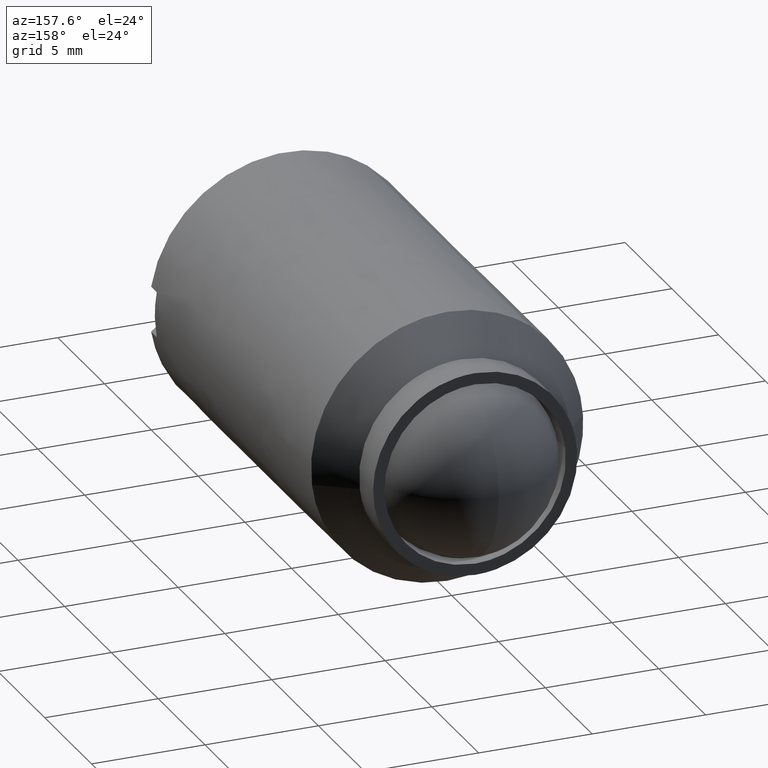
[diagram: clean part render]
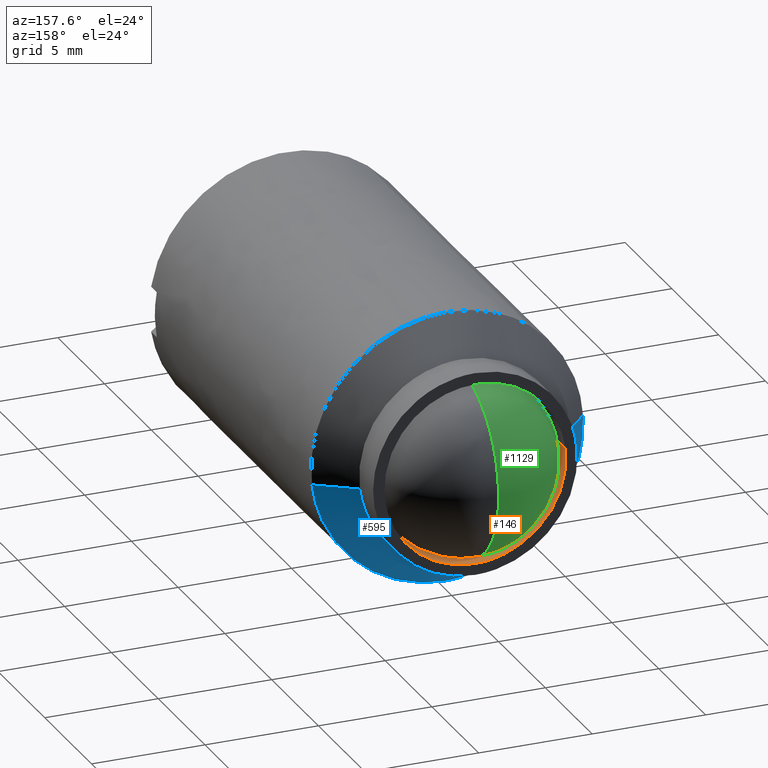
[diagram: same view with three faces highlighted in distinct colors, each labeled with its STEP entity id]
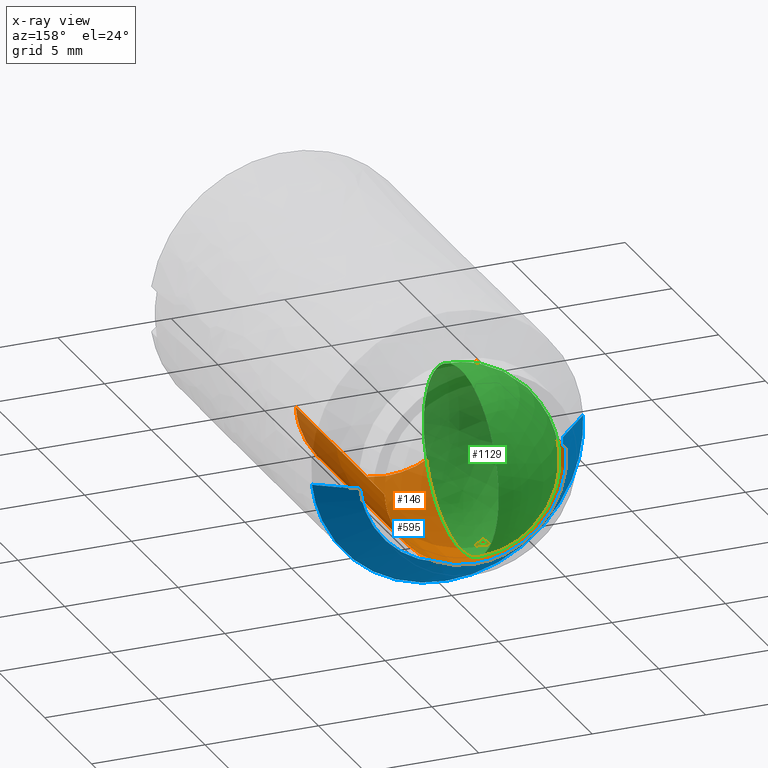
[diagram: x-ray of the same camera — body ghosted, the three highlighted faces saturated]
A machine part, auxiliary view with three faces highlighted in distinct colors.
The next image is the same camera in x-ray (body ghosted, the three faces saturated) — at least one of them is partly hidden behind the body in this view.
Their STEP definitions:

[orange] entity #146 — the highlighted face is a freeform B-spline surface patch.
#44=CARTESIAN_POINT('',(-3.972038105454666,-2.262499999999943,0.472136938627034));
#45=CARTESIAN_POINT('',(-3.985550461794422,-2.262499999999943,0.358458914551911));
#46=CARTESIAN_POINT('',(-3.992539193687467,-2.262499999999943,0.244194158139428));
#47=CARTESIAN_POINT('',(-4.236733351826894,-2.262499999999944,-3.748345035548039));
#48=CARTESIAN_POINT('',(-0.244194158139428,-2.262499999999943,-3.992539193687467));
#49=CARTESIAN_POINT('',(3.748345035548039,-2.262499999999944,-4.236733351826894));
#50=CARTESIAN_POINT('',(3.992539193687467,-2.262499999999943,-0.244194158139428));
#51=CARTESIAN_POINT('',(-3.972038105454666,-12.243437500000006,0.472136938627034));
#52=CARTESIAN_POINT('',(-3.985550461794422,-12.243437500000004,0.358458914551911));
#53=CARTESIAN_POINT('',(-3.992539193687467,-12.243437500000001,0.244194158139428));
#54=CARTESIAN_POINT('',(-4.236733351826894,-12.243437500000004,-3.748345035548039));
#55=CARTESIAN_POINT('',(-0.244194158139428,-12.243437500000001,-3.992539193687467));
#56=CARTESIAN_POINT('',(3.748345035548039,-12.243437500000004,-4.236733351826894));
#57=CARTESIAN_POINT('',(3.992539193687467,-12.243437500000001,-0.244194158139428));
#65=(BOUNDED_SURFACE()B_SPLINE_SURFACE(2,1,((#44,#51),(#45,#52),(#46,#53),(#47,#54),(#48,#55),(#49,#56),(#50,#57)),.UNSPECIFIED.,.F.,.F.,.U.)B_SPLINE_SURFACE_WITH_KNOTS((3,2,2,3),(2,2),(0.0,0.265096679918781,6.892513677888299,13.519930675857820),(0.0,9.980937500000062),.UNSPECIFIED.)GEOMETRIC_REPRESENTATION_ITEM()RATIONAL_B_SPLINE_SURFACE(((0.977505800795127,0.977505800795127),(0.988284271247462,0.988284271247462),(1.0,1.0),(0.707106781186548,0.707106781186548),(1.0,1.0),(0.707106781186548,0.707106781186548),(1.0,1.0)))REPRESENTATION_ITEM('')SURFACE());
#66=CARTESIAN_POINT('',(-3.972038896442782,-11.999999999999989,0.472130284032587));
#67=VERTEX_POINT('',#66);
#68=CARTESIAN_POINT('',(0.0,-12.0,-4.0));
#69=VERTEX_POINT('',#68);
#70=CARTESIAN_POINT('',(-3.972038896442782,-11.999999999999984,0.472130284032587));
#71=CARTESIAN_POINT('',(-4.0,-12.000000000000004,0.236893116135492));
#72=CARTESIAN_POINT('',(-4.0,-12.0,0.0));
#73=CARTESIAN_POINT('',(-4.000000000000000,-12.0,-4.000000000000000));
#74=CARTESIAN_POINT('',(0.0,-12.0,-4.0));
#82=(BOUNDED_CURVE()B_SPLINE_CURVE(2,(#70,#71,#72,#73,#74),.UNSPECIFIED.,.F.,.U.)B_SPLINE_CURVE_WITH_KNOTS((3,2,3),(0.229562756656985,0.250000000000000,0.500000000000000),.UNSPECIFIED.)CURVE()GEOMETRIC_REPRESENTATION_ITEM()RATIONAL_B_SPLINE_CURVE((0.956027309157251,0.976056280054362,1.0,0.707106781186548,1.0))REPRESENTATION_ITEM(''));
#83=EDGE_CURVE('',#67,#69,#82,.T.);
#84=ORIENTED_EDGE('',*,*,#83,.T.);
#85=CARTESIAN_POINT('',(3.992539231132344,-12.0,-0.244193545919572));
#86=VERTEX_POINT('',#85);
#87=CARTESIAN_POINT('',(0.0,-12.0,-4.0));
#88=CARTESIAN_POINT('',(3.762825423769689,-12.0,-4.000000000000001));
#89=CARTESIAN_POINT('',(3.992539231132344,-12.000000000000004,-0.244193545919572));
#97=(BOUNDED_CURVE()B_SPLINE_CURVE(2,(#87,#88,#89),.UNSPECIFIED.,.F.,.U.)B_SPLINE_CURVE_WITH_KNOTS((3,3),(0.500000000000000,0.739333015158958),.UNSPECIFIED.)CURVE()GEOMETRIC_REPRESENTATION_ITEM()RATIONAL_B_SPLINE_CURVE((1.0,0.719603931287056,0.976072155084410))REPRESENTATION_ITEM(''));
#98=EDGE_CURVE('',#69,#86,#97,.T.);
#99=ORIENTED_EDGE('',*,*,#98,.T.);
#100=CARTESIAN_POINT('',(3.992539230669607,-2.499999999999945,-0.244193553485292));
#101=VERTEX_POINT('',#100);
#102=CARTESIAN_POINT('',(3.992539230669607,-2.499999999999945,-0.244193553485292));
#103=CARTESIAN_POINT('',(3.992539231132344,-12.0,-0.244193545919572));
#104=QUASI_UNIFORM_CURVE('',1,(#102,#103),.UNSPECIFIED.,.F.,.U.);
#105=EDGE_CURVE('',#101,#86,#104,.T.);
#106=ORIENTED_EDGE('',*,*,#105,.F.);
#107=CARTESIAN_POINT('',(0.0,-2.499999999999945,-4.0));
#108=VERTEX_POINT('',#107);
#109=CARTESIAN_POINT('',(0.0,-2.499999999999945,-4.0));
#110=CARTESIAN_POINT('',(3.762825409482173,-2.499999999999945,-4.000000000000000));
#111=CARTESIAN_POINT('',(3.992539230669606,-2.499999999999945,-0.244193553485292));
#119=(BOUNDED_CURVE()B_SPLINE_CURVE(2,(#109,#110,#111),.UNSPECIFIED.,.F.,.U.)B_SPLINE_CURVE_WITH_KNOTS((3,3),(0.500000000000000,0.739333014505017),.UNSPECIFIED.)CURVE()GEOMETRIC_REPRESENTATION_ITEM()RATIONAL_B_SPLINE_CURVE((1.0,0.719603932053196,0.976072153682888))REPRESENTATION_ITEM(''));
#120=EDGE_CURVE('',#108,#101,#119,.T.);
#121=ORIENTED_EDGE('',*,*,#120,.F.);
#122=CARTESIAN_POINT('',(-3.972038886687353,-2.499999999999945,0.472130366106310));
#123=VERTEX_POINT('',#122);
#124=CARTESIAN_POINT('',(-3.972038886687353,-2.499999999999945,0.472130366106311));
#125=CARTESIAN_POINT('',(-4.0,-2.499999999999945,0.236893157606169));
#126=CARTESIAN_POINT('',(-4.0,-2.499999999999945,0.0));
#127=CARTESIAN_POINT('',(-4.000000000000000,-2.499999999999945,-4.000000000000000));
#128=CARTESIAN_POINT('',(0.0,-2.499999999999945,-4.0));
#136=(BOUNDED_CURVE()B_SPLINE_CURVE(2,(#124,#125,#126,#127,#128),.UNSPECIFIED.,.F.,.U.)B_SPLINE_CURVE_WITH_KNOTS((3,2,3),(0.229562753164891,0.250000000000000,0.500000000000000),.UNSPECIFIED.)CURVE()GEOMETRIC_REPRESENTATION_ITEM()RATIONAL_B_SPLINE_CURVE((0.956027302312587,0.976056275963120,1.0,0.707106781186548,1.0))REPRESENTATION_ITEM(''));
#137=EDGE_CURVE('',#123,#108,#136,.T.);
#138=ORIENTED_EDGE('',*,*,#137,.F.);
#139=CARTESIAN_POINT('',(-3.972038886687353,-2.499999999999945,0.472130366106310));
#140=CARTESIAN_POINT('',(-3.972038896442782,-11.999999999999989,0.472130284032587));
#141=QUASI_UNIFORM_CURVE('',1,(#139,#140),.UNSPECIFIED.,.F.,.U.);
#142=EDGE_CURVE('',#123,#67,#141,.T.);
#143=ORIENTED_EDGE('',*,*,#142,.T.);
#144=EDGE_LOOP('',(#84,#99,#106,#121,#138,#143));
#145=FACE_OUTER_BOUND('',#144,.T.);
#146=ADVANCED_FACE('',(#145),#65,.F.);

[blue] entity #595 — the highlighted face is a freeform B-spline surface patch.
#310=CARTESIAN_POINT('',(-4.491606592899792,-4.000000000005571,0.274718427926606));
#311=VERTEX_POINT('',#310);
#355=CARTESIAN_POINT('',(4.468542868636527,-4.000000000000478,-0.531154055959211));
#356=VERTEX_POINT('',#355);
#372=CARTESIAN_POINT('',(0.0,-4.0,-4.500000000000002));
#373=VERTEX_POINT('',#372);
#374=CARTESIAN_POINT('',(0.0,-4.0,-4.500000000000002));
#375=CARTESIAN_POINT('',(3.996785366774416,-4.0,-4.500000000000002));
#376=CARTESIAN_POINT('',(4.468542868636527,-4.000000000000479,-0.531154055959211));
#384=(BOUNDED_CURVE()B_SPLINE_CURVE(2,(#374,#375,#376),.UNSPECIFIED.,.F.,.U.)B_SPLINE_CURVE_WITH_KNOTS((3,3),(0.0,0.229562473515361),.UNSPECIFIED.)CURVE()GEOMETRIC_REPRESENTATION_ITEM()RATIONAL_B_SPLINE_CURVE((1.0,0.731050832853231,0.956026754187331))REPRESENTATION_ITEM(''));
#385=EDGE_CURVE('',#373,#356,#384,.T.);
#387=CARTESIAN_POINT('',(-4.491606592899793,-4.000000000005571,0.274718427926606));
#388=CARTESIAN_POINT('',(-4.500000000000000,-4.000000000000000,0.137487434882944));
#389=CARTESIAN_POINT('',(-4.500000000000000,-4.0,-1.591988E-015));
#390=CARTESIAN_POINT('',(-4.500000000000000,-4.0,-4.500000000000002));
#391=CARTESIAN_POINT('',(0.0,-4.0,-4.500000000000002));
#399=(BOUNDED_CURVE()B_SPLINE_CURVE(2,(#387,#388,#389,#390,#391),.UNSPECIFIED.,.F.,.U.)B_SPLINE_CURVE_WITH_KNOTS((3,2,3),(0.739332962238958,0.750000000000000,1.0),.UNSPECIFIED.)CURVE()GEOMETRIC_REPRESENTATION_ITEM()RATIONAL_B_SPLINE_CURVE((0.976072041666749,0.987502787899855,1.0,0.707106781186547,1.0))REPRESENTATION_ITEM(''));
#400=EDGE_CURVE('',#311,#373,#399,.T.);
#464=CARTESIAN_POINT('',(-5.988808790533744,-5.500000000004731,0.366291237245100));
#465=VERTEX_POINT('',#464);
#466=CARTESIAN_POINT('',(-4.491606592899792,-4.000000000005571,0.274718427926606));
#467=CARTESIAN_POINT('',(-5.988808790533744,-5.500000000004731,0.366291237245100));
#468=QUASI_UNIFORM_CURVE('',1,(#466,#467),.UNSPECIFIED.,.F.,.U.);
#469=EDGE_CURVE('',#311,#465,#468,.T.);
#501=CARTESIAN_POINT('',(5.958057158182147,-5.500000000002313,-0.708205407958896));
#502=VERTEX_POINT('',#501);
#518=CARTESIAN_POINT('',(4.468542868636527,-4.000000000000478,-0.531154055959211));
#519=CARTESIAN_POINT('',(5.958057158182147,-5.500000000002313,-0.708205407958896));
#520=QUASI_UNIFORM_CURVE('',1,(#518,#519),.UNSPECIFIED.,.F.,.U.);
#521=EDGE_CURVE('',#356,#502,#520,.T.);
#526=CARTESIAN_POINT('',(-4.454176537957578,-3.962500000000000,0.272429107674298));
#527=CARTESIAN_POINT('',(-4.726605645631879,-3.962500000000000,-4.181747430283282));
#528=CARTESIAN_POINT('',(-0.272429107674299,-3.962500000000000,-4.454176537957580));
#529=CARTESIAN_POINT('',(3.933887827871271,-3.962500000000000,-4.711445902918904));
#530=CARTESIAN_POINT('',(4.431305011397859,-3.962500000000000,-0.526727772155786));
#531=CARTESIAN_POINT('',(-6.027174596845543,-5.538437500000001,0.368637790447511));
#532=CARTESIAN_POINT('',(-6.395812387293058,-5.538437500000001,-5.658536806398032));
#533=CARTESIAN_POINT('',(-0.368637790447513,-5.538437500000001,-6.027174596845545));
#534=CARTESIAN_POINT('',(5.323145272966152,-5.538437500000001,-6.375298962332075));
#535=CARTESIAN_POINT('',(5.996225961851604,-5.538437500000001,-0.712742348835172));
#543=(BOUNDED_SURFACE()B_SPLINE_SURFACE(2,1,((#526,#531),(#527,#532),(#528,#533),(#529,#534),(#530,#535)),.UNSPECIFIED.,.F.,.F.,.U.)B_SPLINE_SURFACE_WITH_KNOTS((3,2,3),(2,2),(0.0,10.004810832169150,19.609429231051529),(0.0,2.228712185952353),.UNSPECIFIED.)GEOMETRIC_REPRESENTATION_ITEM()RATIONAL_B_SPLINE_SURFACE(((1.0,1.0),(0.707106781186548,0.707106781186548),(1.0,1.0),(0.718822509939086,0.718822509939086),(0.977505800795127,0.977505800795127)))REPRESENTATION_ITEM('')SURFACE());
#544=ORIENTED_EDGE('',*,*,#385,.T.);
#545=ORIENTED_EDGE('',*,*,#521,.T.);
#546=CARTESIAN_POINT('',(0.0,-5.500000000000000,-6.000000000000002));
#547=VERTEX_POINT('',#546);
#548=CARTESIAN_POINT('',(0.0,-5.500000000000000,-6.000000000000002));
#549=CARTESIAN_POINT('',(5.329047155675653,-5.500000000000000,-6.000000000000002));
#550=CARTESIAN_POINT('',(5.958057158182148,-5.500000000002313,-0.708205407958896));
#558=(BOUNDED_CURVE()B_SPLINE_CURVE(2,(#548,#549,#550),.UNSPECIFIED.,.F.,.U.)B_SPLINE_CURVE_WITH_KNOTS((3,3),(0.0,0.229562473514619),.UNSPECIFIED.)CURVE()GEOMETRIC_REPRESENTATION_ITEM()RATIONAL_B_SPLINE_CURVE((1.0,0.731050832854101,0.956026754185876))REPRESENTATION_ITEM(''));
#559=EDGE_CURVE('',#547,#502,#558,.T.);
#560=ORIENTED_EDGE('',*,*,#559,.F.);
#561=CARTESIAN_POINT('',(-5.500045112384811,-5.499999999999999,-2.397812286587266));
#562=VERTEX_POINT('',#561);
#563=CARTESIAN_POINT('',(-5.500045112384811,-5.499999999999998,-2.397812286587265));
#564=CARTESIAN_POINT('',(-3.929627091930062,-5.500000000000001,-6.000000000000002));
#565=CARTESIAN_POINT('',(0.0,-5.500000000000000,-6.000000000000002));
#573=(BOUNDED_CURVE()B_SPLINE_CURVE(2,(#563,#564,#565),.UNSPECIFIED.,.F.,.U.)B_SPLINE_CURVE_WITH_KNOTS((3,3),(0.817857007856095,1.0),.UNSPECIFIED.)CURVE()GEOMETRIC_REPRESENTATION_ITEM()RATIONAL_B_SPLINE_CURVE((0.884157887859825,0.786606210986633,1.0))REPRESENTATION_ITEM(''));
#574=EDGE_CURVE('',#562,#547,#573,.T.);
#575=ORIENTED_EDGE('',*,*,#574,.F.);
#576=CARTESIAN_POINT('',(-5.988808790533744,-5.500000000004731,0.366291237245100));
#577=CARTESIAN_POINT('',(-6.000000000000001,-5.500000000000000,0.183316579827302));
#578=CARTESIAN_POINT('',(-6.0,-5.500000000000000,-1.591988E-015));
#579=CARTESIAN_POINT('',(-6.0,-5.500000000000000,-1.251027589798952));
#580=CARTESIAN_POINT('',(-5.500045112384811,-5.499999999999998,-2.397812286587265));
#588=(BOUNDED_CURVE()B_SPLINE_CURVE(2,(#576,#577,#578,#579,#580),.UNSPECIFIED.,.F.,.U.)B_SPLINE_CURVE_WITH_KNOTS((3,2,3),(0.739332962239913,0.750000000000000,0.817857007856095),.UNSPECIFIED.)CURVE()GEOMETRIC_REPRESENTATION_ITEM()RATIONAL_B_SPLINE_CURVE((0.976072041668797,0.987502787900974,1.0,0.920500570199915,0.884157887859825))REPRESENTATION_ITEM(''));
#589=EDGE_CURVE('',#465,#562,#588,.T.);
#590=ORIENTED_EDGE('',*,*,#589,.F.);
#591=ORIENTED_EDGE('',*,*,#469,.F.);
#592=ORIENTED_EDGE('',*,*,#400,.T.);
#593=EDGE_LOOP('',(#544,#545,#560,#575,#590,#591,#592));
#594=FACE_OUTER_BOUND('',#593,.T.);
#595=ADVANCED_FACE('',(#594),#543,.T.);

[green] entity #1129 — the highlighted face is a freeform B-spline surface patch.
#1049=CARTESIAN_POINT('',(1.500000000000000,-6.622022120425378,2.622022120425379));
#1050=CARTESIAN_POINT('',(0.981132075471699,-6.374661543026759,3.166215390702345));
#1051=CARTESIAN_POINT('',(0.190476190476191,-4.998865569685856,3.995462278743434));
#1052=CARTESIAN_POINT('',(0.190476190476191,-3.001134430314142,3.995462278743434));
#1053=CARTESIAN_POINT('',(0.981132075471699,-1.625338456973243,3.166215390702345));
#1054=CARTESIAN_POINT('',(1.500000000000000,-1.377977879574622,2.622022120425379));
#1055=CARTESIAN_POINT('',(0.981132075471699,-7.166215390702344,2.374661543026759));
#1056=CARTESIAN_POINT('',(0.190476190476191,-6.996596709057576,2.996596709057576));
#1057=CARTESIAN_POINT('',(-1.161290322580644,-5.353301739574388,4.059905218723167));
#1058=CARTESIAN_POINT('',(-1.161290322580644,-2.646698260425612,4.059905218723167));
#1059=CARTESIAN_POINT('',(0.190476190476191,-1.003403290942425,2.996596709057576));
#1060=CARTESIAN_POINT('',(0.981132075471699,-0.833784609297657,2.374661543026759));
#1061=CARTESIAN_POINT('',(0.190476190476191,-7.995462278743434,0.998865569685859));
#1062=CARTESIAN_POINT('',(-1.161290322580644,-8.059905218723168,1.353301739574390));
#1063=CARTESIAN_POINT('',(-3.999999999999999,-6.097617696340302,2.097617696340304));
#1064=CARTESIAN_POINT('',(-3.999999999999999,-1.902382303659698,2.097617696340304));
#1065=CARTESIAN_POINT('',(-1.161290322580644,0.059905218723165,1.353301739574390));
#1066=CARTESIAN_POINT('',(0.190476190476191,-0.004537721256567,0.998865569685859));
#1067=CARTESIAN_POINT('',(0.190476190476191,-7.995462278743434,-0.998865569685857));
#1068=CARTESIAN_POINT('',(-1.161290322580644,-8.059905218723168,-1.353301739574387));
#1069=CARTESIAN_POINT('',(-3.999999999999999,-6.097617696340302,-2.097617696340301));
#1070=CARTESIAN_POINT('',(-3.999999999999999,-1.902382303659698,-2.097617696340301));
#1071=CARTESIAN_POINT('',(-1.161290322580644,0.059905218723165,-1.353301739574387));
#1072=CARTESIAN_POINT('',(0.190476190476191,-0.004537721256567,-0.998865569685857));
#1073=CARTESIAN_POINT('',(0.981132075471699,-7.166215390702344,-2.374661543026756));
#1074=CARTESIAN_POINT('',(0.190476190476191,-6.996596709057576,-2.996596709057574));
#1075=CARTESIAN_POINT('',(-1.161290322580644,-5.353301739574388,-4.059905218723164));
#1076=CARTESIAN_POINT('',(-1.161290322580644,-2.646698260425612,-4.059905218723164));
#1077=CARTESIAN_POINT('',(0.190476190476191,-1.003403290942425,-2.996596709057574));
#1078=CARTESIAN_POINT('',(0.981132075471699,-0.833784609297657,-2.374661543026756));
#1079=CARTESIAN_POINT('',(1.500000000000000,-6.622022120425378,-2.622022120425377));
#1080=CARTESIAN_POINT('',(0.981132075471699,-6.374661543026759,-3.166215390702342));
#1081=CARTESIAN_POINT('',(0.190476190476191,-4.998865569685856,-3.995462278743432));
#1082=CARTESIAN_POINT('',(0.190476190476191,-3.001134430314142,-3.995462278743432));
#1083=CARTESIAN_POINT('',(0.981132075471699,-1.625338456973243,-3.166215390702342));
#1084=CARTESIAN_POINT('',(1.500000000000000,-1.377977879574622,-2.622022120425377));
#1092=(BOUNDED_SURFACE()B_SPLINE_SURFACE(2,2,((#1049,#1055,#1061,#1067,#1073,#1079),(#1050,#1056,#1062,#1068,#1074,#1080),(#1051,#1057,#1063,#1069,#1075,#1081),(#1052,#1058,#1064,#1070,#1076,#1082),(#1053,#1059,#1065,#1071,#1077,#1083),(#1054,#1060,#1066,#1072,#1078,#1084)),.UNSPECIFIED.,.F.,.F.,.U.)B_SPLINE_SURFACE_WITH_KNOTS((3,1,1,1,3),(3,1,1,1,3),(0.0,3.688119026532402,7.376238053064803,11.064357079597210,14.752476106129610),(0.0,3.688119026532401,7.376238053064801,11.064357079597199,14.752476106129601),.UNSPECIFIED.)GEOMETRIC_REPRESENTATION_ITEM()RATIONAL_B_SPLINE_SURFACE(((3.200000000000000,2.650000000000000,2.100000000000000,2.100000000000000,2.650000000000000,3.200000000000000),(2.650000000000000,2.100000000000000,1.550000000000000,1.550000000000000,2.100000000000000,2.650000000000000),(2.100000000000000,1.550000000000000,1.0,1.0,1.550000000000000,2.100000000000000),(2.100000000000000,1.550000000000000,1.0,1.0,1.550000000000000,2.100000000000000),(2.650000000000000,2.100000000000000,1.550000000000000,1.550000000000000,2.100000000000000,2.650000000000000),(3.200000000000000,2.650000000000000,2.100000000000000,2.100000000000000,2.650000000000000,3.200000000000000)))REPRESENTATION_ITEM('')SURFACE());
#1093=CARTESIAN_POINT('',(0.0,0.0,1.347067E-015));
#1094=VERTEX_POINT('',#1093);
#1095=CARTESIAN_POINT('',(0.0,-8.0,1.347067E-015));
#1096=VERTEX_POINT('',#1095);
#1097=CARTESIAN_POINT('',(0.0,0.0,1.347067E-015));
#1098=CARTESIAN_POINT('',(0.0,0.0,-3.999999999999998));
#1099=CARTESIAN_POINT('',(0.0,-4.0,-3.999999999999998));
#1100=CARTESIAN_POINT('',(0.0,-8.0,-3.999999999999998));
#1101=CARTESIAN_POINT('',(0.0,-8.0,1.347067E-015));
#1109=(BOUNDED_CURVE()B_SPLINE_CURVE(2,(#1097,#1098,#1099,#1100,#1101),.UNSPECIFIED.,.F.,.U.)B_SPLINE_CURVE_WITH_KNOTS((3,2,3),(0.0,0.500000000000000,1.0),.UNSPECIFIED.)CURVE()GEOMETRIC_REPRESENTATION_ITEM()RATIONAL_B_SPLINE_CURVE((1.0,0.707106781186548,1.0,0.707106781186548,1.0))REPRESENTATION_ITEM(''));
#1110=EDGE_CURVE('',#1094,#1096,#1109,.T.);
#1111=ORIENTED_EDGE('',*,*,#1110,.T.);
#1112=CARTESIAN_POINT('',(0.0,0.0,1.347067E-015));
#1113=CARTESIAN_POINT('',(0.0,0.0,4.000000000000003));
#1114=CARTESIAN_POINT('',(0.0,-4.0,4.000000000000002));
#1115=CARTESIAN_POINT('',(0.0,-8.0,4.000000000000003));
#1116=CARTESIAN_POINT('',(0.0,-8.0,1.347067E-015));
#1124=(BOUNDED_CURVE()B_SPLINE_CURVE(2,(#1112,#1113,#1114,#1115,#1116),.UNSPECIFIED.,.F.,.U.)B_SPLINE_CURVE_WITH_KNOTS((3,2,3),(0.0,0.500000000000000,1.0),.UNSPECIFIED.)CURVE()GEOMETRIC_REPRESENTATION_ITEM()RATIONAL_B_SPLINE_CURVE((1.0,0.707106781186548,1.0,0.707106781186548,1.0))REPRESENTATION_ITEM(''));
#1125=EDGE_CURVE('',#1094,#1096,#1124,.T.);
#1126=ORIENTED_EDGE('',*,*,#1125,.F.);
#1127=EDGE_LOOP('',(#1111,#1126));
#1128=FACE_OUTER_BOUND('',#1127,.T.);
#1129=ADVANCED_FACE('',(#1128),#1092,.T.);